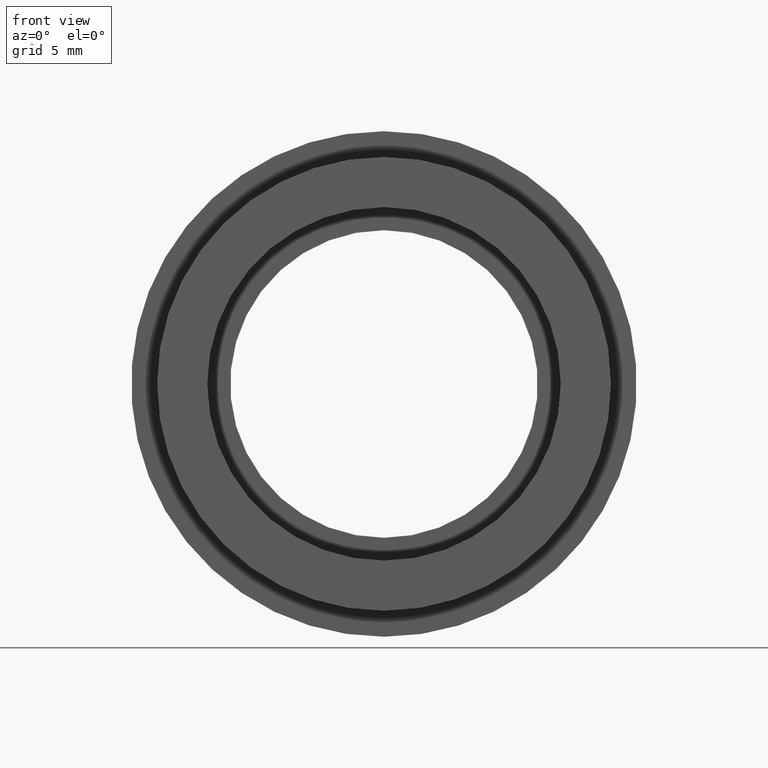
[diagram: clean part render]
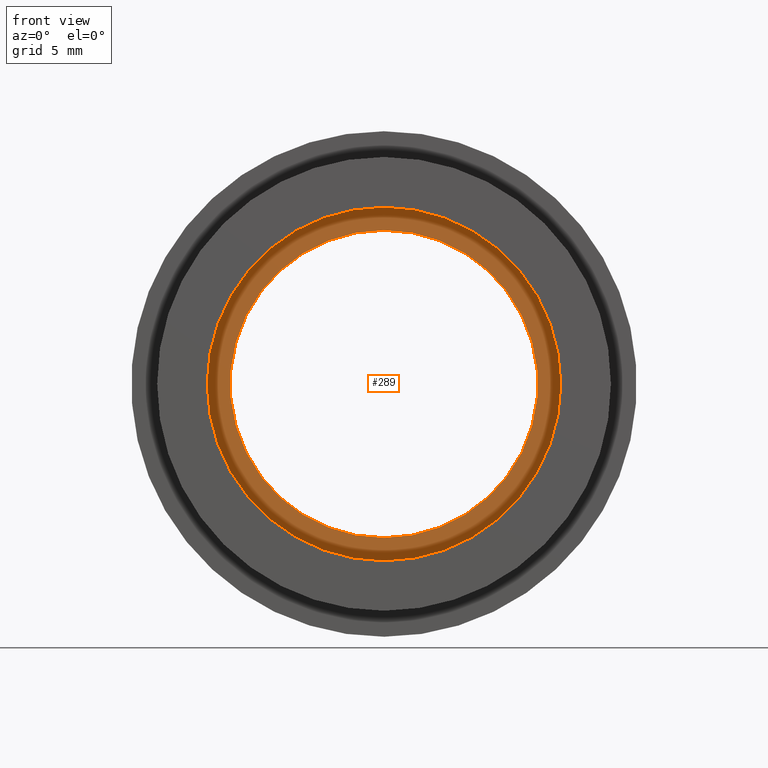
[diagram: same view with one face highlighted and labeled with its STEP entity id]
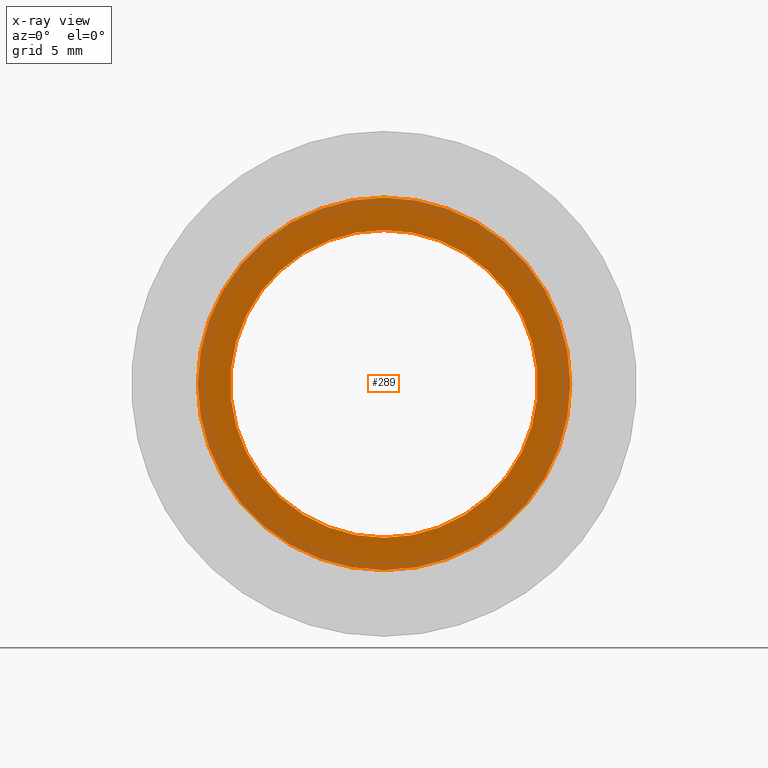
[diagram: x-ray of the same camera — body ghosted, the highlighted face saturated]
A machine part, front view. The second image highlights one B-rep face of the part: STEP entity #289.
The next image is the same camera in x-ray: the body ghosted, the highlighted face saturated — about 31% of this face is hidden behind the body in this view.
In plain terms, the highlighted planar face has unit normal (-0, 1, 0).
Its self-contained STEP definition (entity closure, byte-faithful):
#15 = DIRECTION ( 'NONE',  ( -0.0000000000000000000, 1.000000000000000000, -0.0000000000000000000 ) ) ;
#17 = EDGE_LOOP ( 'NONE', ( #472, #621 ) ) ;
#21 = CARTESIAN_POINT ( 'NONE',  ( 0.0000000000000000000, 5.000000000000000900, 0.0000000000000000000 ) ) ;
#41 = EDGE_CURVE ( 'NONE', #373, #521, #420, .T. ) ;
#107 = AXIS2_PLACEMENT_3D ( 'NONE', #132, #345, #554 ) ;
#119 = CARTESIAN_POINT ( 'NONE',  ( 1.432836755002403300E-015, 5.000000000000000900, -11.70000000000000100 ) ) ;
#132 = CARTESIAN_POINT ( 'NONE',  ( 11.70000000000000100, 5.000000000000000000, 0.0000000000000000000 ) ) ;
#143 = DIRECTION ( 'NONE',  ( -0.0000000000000000000, 1.000000000000000000, -0.0000000000000000000 ) ) ;
#160 = EDGE_CURVE ( 'NONE', #521, #373, #322, .T. ) ;
#164 = CARTESIAN_POINT ( 'NONE',  ( 0.0000000000000000000, 5.000000000000000900, 0.0000000000000000000 ) ) ;
#167 = DIRECTION ( 'NONE',  ( 0.0000000000000000000, 0.0000000000000000000, 1.000000000000000000 ) ) ;
#185 = ORIENTED_EDGE ( 'NONE', *, *, #282, .F. ) ;
#197 = CARTESIAN_POINT ( 'NONE',  ( 1.183008807976343300E-015, 5.000000000000000900, -9.660000000000000100 ) ) ;
#199 = AXIS2_PLACEMENT_3D ( 'NONE', #485, #324, #167 ) ;
#254 = FACE_OUTER_BOUND ( 'NONE', #337, .T. ) ;
#282 = EDGE_CURVE ( 'NONE', #500, #438, #332, .T. ) ;
#283 = DIRECTION ( 'NONE',  ( 0.0000000000000000000, 0.0000000000000000000, 1.000000000000000000 ) ) ;
#289 = ADVANCED_FACE ( 'NONE', ( #254, #350 ), #343, .F. ) ;
#322 = CIRCLE ( 'NONE', #384, 9.660000000000000100 ) ;
#324 = DIRECTION ( 'NONE',  ( -0.0000000000000000000, 1.000000000000000000, -0.0000000000000000000 ) ) ;
#331 = DIRECTION ( 'NONE',  ( -0.0000000000000000000, 1.000000000000000000, -0.0000000000000000000 ) ) ;
#332 = CIRCLE ( 'NONE', #537, 11.70000000000000100 ) ;
#337 = EDGE_LOOP ( 'NONE', ( #185, #613 ) ) ;
#341 = CARTESIAN_POINT ( 'NONE',  ( 0.0000000000000000000, 5.000000000000000900, 0.0000000000000000000 ) ) ;
#343 = PLANE ( 'NONE',  #107 ) ;
#345 = DIRECTION ( 'NONE',  ( -0.0000000000000000000, 1.000000000000000000, 0.0000000000000000000 ) ) ;
#349 = DIRECTION ( 'NONE',  ( 0.0000000000000000000, 0.0000000000000000000, 1.000000000000000000 ) ) ;
#350 = FACE_BOUND ( 'NONE', #17, .T. ) ;
#373 = VERTEX_POINT ( 'NONE', #197 ) ;
#375 = EDGE_CURVE ( 'NONE', #438, #500, #426, .T. ) ;
#384 = AXIS2_PLACEMENT_3D ( 'NONE', #164, #15, #283 ) ;
#420 = CIRCLE ( 'NONE', #199, 9.660000000000000100 ) ;
#426 = CIRCLE ( 'NONE', #539, 11.70000000000000100 ) ;
#438 = VERTEX_POINT ( 'NONE', #119 ) ;
#472 = ORIENTED_EDGE ( 'NONE', *, *, #160, .T. ) ;
#485 = CARTESIAN_POINT ( 'NONE',  ( 0.0000000000000000000, 5.000000000000000900, 0.0000000000000000000 ) ) ;
#500 = VERTEX_POINT ( 'NONE', #581 ) ;
#521 = VERTEX_POINT ( 'NONE', #548 ) ;
#537 = AXIS2_PLACEMENT_3D ( 'NONE', #341, #331, #349 ) ;
#539 = AXIS2_PLACEMENT_3D ( 'NONE', #21, #143, #600 ) ;
#548 = CARTESIAN_POINT ( 'NONE',  ( 0.0000000000000000000, 5.000000000000000900, 9.660000000000000100 ) ) ;
#554 = DIRECTION ( 'NONE',  ( 0.0000000000000000000, 0.0000000000000000000, 1.000000000000000000 ) ) ;
#581 = CARTESIAN_POINT ( 'NONE',  ( 0.0000000000000000000, 5.000000000000000900, 11.70000000000000100 ) ) ;
#600 = DIRECTION ( 'NONE',  ( 0.0000000000000000000, 0.0000000000000000000, 1.000000000000000000 ) ) ;
#613 = ORIENTED_EDGE ( 'NONE', *, *, #375, .F. ) ;
#621 = ORIENTED_EDGE ( 'NONE', *, *, #41, .T. ) ;